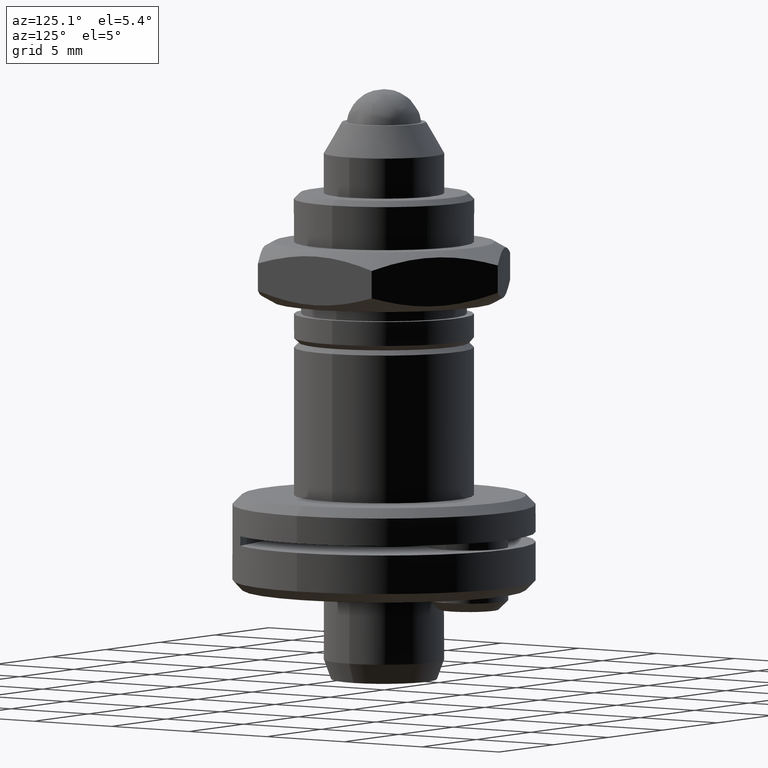
[diagram: clean part render]
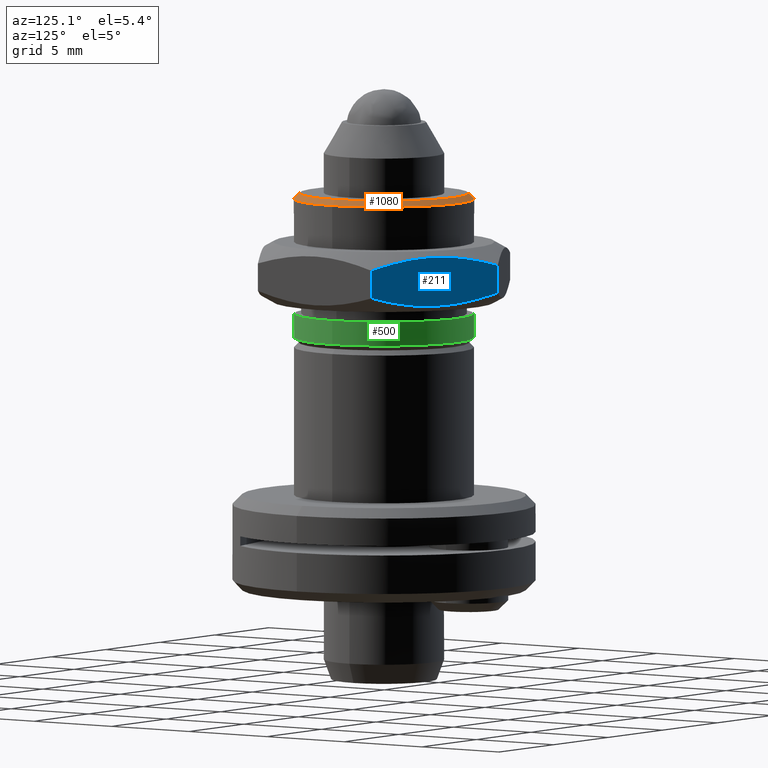
[diagram: same view with three faces highlighted in distinct colors, each labeled with its STEP entity id]
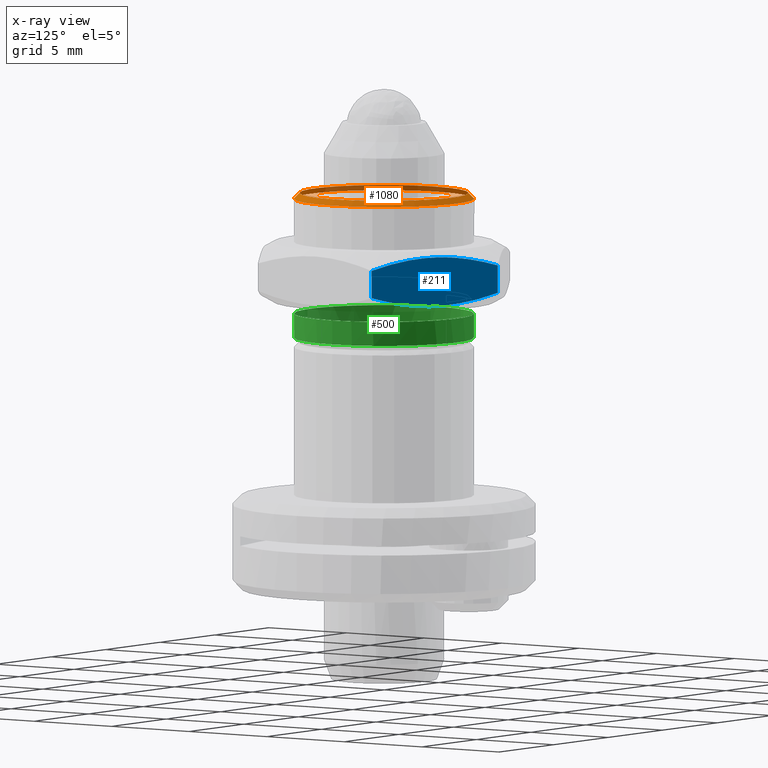
[diagram: x-ray of the same camera — body ghosted, the three highlighted faces saturated]
A machine part, auxiliary view with three faces highlighted in distinct colors.
The next image is the same camera in x-ray (body ghosted, the three faces saturated) — at least one of them is partly hidden behind the body in this view.
Their STEP definitions:

[orange] entity #1080 — the highlighted conical surface has half-angle 45 deg.
#262 = CARTESIAN_POINT ( 'NONE',  ( 4.762500000026648195, 0.000000000000000000, -5.797200000000004572 ) ) ;
#313 = CONICAL_SURFACE ( 'NONE', #1747, 4.462500000026639491, 0.7853981633974541632 ) ;
#497 = DIRECTION ( 'NONE',  ( 1.000000000000000000, 0.000000000000000000, 0.000000000000000000 ) ) ;
#704 = CARTESIAN_POINT ( 'NONE',  ( 0.000000000000000000, 0.000000000000000000, -5.797200000000004572 ) ) ;
#867 = VERTEX_POINT ( 'NONE', #2079 ) ;
#899 = DIRECTION ( 'NONE',  ( -1.000000000000000000, 0.000000000000000000, 0.000000000000000000 ) ) ;
#1059 = AXIS2_PLACEMENT_3D ( 'NONE', #1419, #1970, #1178 ) ;
#1080 = ADVANCED_FACE ( 'NONE', ( #2083, #1876 ), #313, .T. ) ;
#1169 = EDGE_LOOP ( 'NONE', ( #1963 ) ) ;
#1178 = DIRECTION ( 'NONE',  ( 1.000000000000000000, 0.000000000000000000, 0.000000000000000000 ) ) ;
#1419 = CARTESIAN_POINT ( 'NONE',  ( 0.000000000000000000, 0.000000000000000000, -5.497199999999999420 ) ) ;
#1639 = DIRECTION ( 'NONE',  ( 0.000000000000000000, 0.000000000000000000, -1.000000000000000000 ) ) ;
#1640 = CARTESIAN_POINT ( 'NONE',  ( 0.000000000000000000, 0.000000000000000000, -5.497199999999999420 ) ) ;
#1747 = AXIS2_PLACEMENT_3D ( 'NONE', #1640, #2276, #899 ) ;
#1757 = CIRCLE ( 'NONE', #1059, 4.462500000026639491 ) ;
#1826 = AXIS2_PLACEMENT_3D ( 'NONE', #704, #1639, #497 ) ;
#1876 = FACE_BOUND ( 'NONE', #1169, .T. ) ;
#1963 = ORIENTED_EDGE ( 'NONE', *, *, #1994, .F. ) ;
#1970 = DIRECTION ( 'NONE',  ( 0.000000000000000000, 0.000000000000000000, 1.000000000000000000 ) ) ;
#1994 = EDGE_CURVE ( 'NONE', #867, #867, #1757, .T. ) ;
#2024 = ORIENTED_EDGE ( 'NONE', *, *, #2328, .F. ) ;
#2052 = VERTEX_POINT ( 'NONE', #262 ) ;
#2079 = CARTESIAN_POINT ( 'NONE',  ( 4.462500000026639491, 0.000000000000000000, -5.497199999999999420 ) ) ;
#2081 = CIRCLE ( 'NONE', #1826, 4.762500000026648195 ) ;
#2083 = FACE_OUTER_BOUND ( 'NONE', #2422, .T. ) ;
#2276 = DIRECTION ( 'NONE',  ( 0.000000000000000000, 0.000000000000000000, -1.000000000000000000 ) ) ;
#2328 = EDGE_CURVE ( 'NONE', #2052, #2052, #2081, .T. ) ;
#2422 = EDGE_LOOP ( 'NONE', ( #2024 ) ) ;

[blue] entity #211 — the highlighted planar face has unit normal (-0.5, -0.866, 0).
#54 = CARTESIAN_POINT ( 'NONE',  ( 2.095898543574923778, 6.122280830381066075, -10.90427832816657627 ) ) ;
#79 = DIRECTION ( 'NONE',  ( 0.8660254037844289376, -0.5000000000000167644, 0.000000000000000000 ) ) ;
#151 = ORIENTED_EDGE ( 'NONE', *, *, #2192, .F. ) ;
#155 = CARTESIAN_POINT ( 'NONE',  ( 6.350000000000942002, 3.666174209354503777, -8.937653060721208576 ) ) ;
#211 = ADVANCED_FACE ( 'NONE', ( #1293 ), #479, .F. ) ;
#245 = VERTEX_POINT ( 'NONE', #451 ) ;
#267 = CARTESIAN_POINT ( 'NONE',  ( 0.5184175274064666272, 7.033039919707489318, -10.56455278415059951 ) ) ;
#288 = LINE ( 'NONE', #1660, #1404 ) ;
#362 = CARTESIAN_POINT ( 'NONE',  ( 3.720933469663062709, 5.184066478361493147, -8.370893383825873002 ) ) ;
#385 = CARTESIAN_POINT ( 'NONE',  ( 1.042466646458993118, 6.730480019753913190, -8.621855908812767311 ) ) ;
#451 = CARTESIAN_POINT ( 'NONE',  ( 6.350000000000942002, 3.666174209354503777, -8.937653060721208576 ) ) ;
#472 = CARTESIAN_POINT ( 'NONE',  ( 5.307533277096408320, 4.268042652443604368, -10.70754410959788494 ) ) ;
#479 = PLANE ( 'NONE',  #2341 ) ;
#505 = CARTESIAN_POINT ( 'NONE',  ( 6.349999999999999645, 3.666174209353959768, -8.077199999999999491 ) ) ;
#638 = ORIENTED_EDGE ( 'NONE', *, *, #880, .F. ) ;
#676 = CARTESIAN_POINT ( 'NONE',  ( 2.629066476214607651, 5.814456180948253561, -10.95850661229923340 ) ) ;
#689 = CARTESIAN_POINT ( 'NONE',  ( 6.349999999999999645, 3.666174242674693939, -10.39174692971212011 ) ) ;
#735 = B_SPLINE_CURVE_WITH_KNOTS ( 'NONE', 3,
 ( #1034, #267, #1817, #54, #676, #841, #1996, #2434, #1047, #472, #1258, #1021 ),
 .UNSPECIFIED., .F., .F.,
 ( 4, 2, 2, 2, 2, 4 ),
 ( 3.434922500509765702E-11, 0.001851315121222546836, 0.003702630208095868385, 0.004628287751532529810, 0.005553945294969192537, 0.007405260381842519724 ),
 .UNSPECIFIED. ) ;
#841 = CARTESIAN_POINT ( 'NONE',  ( 3.438862773081391655, 5.346920070963430582, -10.95910243954987529 ) ) ;
#880 = EDGE_CURVE ( 'NONE', #2487, #2289, #735, .T. ) ;
#940 = CARTESIAN_POINT ( 'NONE',  ( 5.309385398718746707, 4.266973329526373426, -8.622423978090150598 ) ) ;
#1021 = CARTESIAN_POINT ( 'NONE',  ( 6.349999999999999645, 3.666174242674693939, -10.39174692971212011 ) ) ;
#1034 = CARTESIAN_POINT ( 'NONE',  ( -2.885595593049908021E-08, 7.332348435368240658, -10.39174692971229064 ) ) ;
#1047 = CARTESIAN_POINT ( 'NONE',  ( 4.512969957013535094, 4.726783999181670914, -10.85576655939430957 ) ) ;
#1145 = CARTESIAN_POINT ( 'NONE',  ( 2.911137165393000270, 5.651602592620598386, -8.370297562367492006 ) ) ;
#1211 = DIRECTION ( 'NONE',  ( -0.000000000000000000, -0.000000000000000000, -1.000000000000000000 ) ) ;
#1258 = CARTESIAN_POINT ( 'NONE',  ( 5.830935958702113453, 3.965855973323964001, -10.56476828298862358 ) ) ;
#1283 = EDGE_CURVE ( 'NONE', #245, #2289, #288, .T. ) ;
#1293 = FACE_OUTER_BOUND ( 'NONE', #1893, .T. ) ;
#1368 = CARTESIAN_POINT ( 'NONE',  ( 0.5190639609765594908, 7.032666701111782714, -8.764631740393472370 ) ) ;
#1404 = VECTOR ( 'NONE', #1630, 1000.000000000000000 ) ;
#1477 = EDGE_CURVE ( 'NONE', #245, #2414, #1879, .T. ) ;
#1489 = CARTESIAN_POINT ( 'NONE',  ( 1.455313926847094691E-13, 7.332348418709172755, -8.937653060721164167 ) ) ;
#1534 = CARTESIAN_POINT ( 'NONE',  ( -2.885595593049908021E-08, 7.332348435368240658, -10.39174692971229064 ) ) ;
#1562 = CARTESIAN_POINT ( 'NONE',  ( 2.103465585201813148, 6.117911996860811996, -8.435248392561772945 ) ) ;
#1630 = DIRECTION ( 'NONE',  ( -0.000000000000000000, -0.000000000000000000, -1.000000000000000000 ) ) ;
#1660 = CARTESIAN_POINT ( 'NONE',  ( 6.349999999999999645, 3.666174209353959768, -8.077199999999999491 ) ) ;
#1666 = VECTOR ( 'NONE', #1211, 1000.000000000000000 ) ;
#1725 = CARTESIAN_POINT ( 'NONE',  ( 4.254101407321498662, 4.876241826031103344, -8.425121665177213615 ) ) ;
#1817 = CARTESIAN_POINT ( 'NONE',  ( 1.040614562266858112, 6.731549321060803948, -10.70697601216268779 ) ) ;
#1879 = B_SPLINE_CURVE_WITH_KNOTS ( 'NONE', 3,
 ( #155, #2332, #940, #1725, #362, #1145, #1929, #1562, #1948, #385, #1368, #2163 ),
 .UNSPECIFIED., .F., .F.,
 ( 4, 2, 2, 2, 2, 4 ),
 ( 1.613843466761046752E-15, 0.001851315103361937144, 0.003702630206722260127, 0.004628287758402422486, 0.005553945310082583978, 0.007405260413442906961 ),
 .UNSPECIFIED. ) ;
#1893 = EDGE_LOOP ( 'NONE', ( #2123, #2541, #638, #151 ) ) ;
#1929 = CARTESIAN_POINT ( 'NONE',  ( 2.639933959897847959, 5.808181836318321523, -8.383554203957617190 ) ) ;
#1948 = CARTESIAN_POINT ( 'NONE',  ( 1.837029972698696056, 6.271738669461197624, -8.473633451696272800 ) ) ;
#1978 = CARTESIAN_POINT ( 'NONE',  ( 1.405126015541213746E-13, 7.332348418708166449, -8.077199999999999491 ) ) ;
#1996 = CARTESIAN_POINT ( 'NONE',  ( 3.710065976304290025, 5.190340828577599375, -10.94584580014166697 ) ) ;
#2123 = ORIENTED_EDGE ( 'NONE', *, *, #1477, .F. ) ;
#2163 = CARTESIAN_POINT ( 'NONE',  ( 1.455313926847094691E-13, 7.332348418709172755, -8.937653060721164167 ) ) ;
#2192 = EDGE_CURVE ( 'NONE', #2414, #2487, #2385, .T. ) ;
#2225 = DIRECTION ( 'NONE',  ( -0.5000000000000167644, -0.8660254037844289376, 0.000000000000000000 ) ) ;
#2289 = VERTEX_POINT ( 'NONE', #689 ) ;
#2332 = CARTESIAN_POINT ( 'NONE',  ( 5.831582409655795551, 3.965482744691837258, -8.764847197270878354 ) ) ;
#2341 = AXIS2_PLACEMENT_3D ( 'NONE', #505, #2225, #79 ) ;
#2385 = LINE ( 'NONE', #1978, #1666 ) ;
#2414 = VERTEX_POINT ( 'NONE', #1489 ) ;
#2434 = CARTESIAN_POINT ( 'NONE',  ( 4.246534346621254841, 4.880610670563365616, -10.89415161611917071 ) ) ;
#2487 = VERTEX_POINT ( 'NONE', #1534 ) ;
#2541 = ORIENTED_EDGE ( 'NONE', *, *, #1283, .T. ) ;

[green] entity #500 — the highlighted cylindrical surface (bore or boss wall) has radius 4.7498 mm, axis along (0, 0, 1).
#340 = AXIS2_PLACEMENT_3D ( 'NONE', #2201, #2027, #1789 ) ;
#390 = CARTESIAN_POINT ( 'NONE',  ( 0.000000000000000000, 0.000000000000000000, 1.337328265961435836 ) ) ;
#492 = ORIENTED_EDGE ( 'NONE', *, *, #840, .F. ) ;
#500 = ADVANCED_FACE ( 'NONE', ( #1137, #1365 ), #1357, .T. ) ;
#781 = CARTESIAN_POINT ( 'NONE',  ( 4.749800000000000466, 0.000000000000000000, -11.88719999999999999 ) ) ;
#840 = EDGE_CURVE ( 'NONE', #1776, #1776, #1443, .T. ) ;
#855 = AXIS2_PLACEMENT_3D ( 'NONE', #947, #1217, #2154 ) ;
#947 = CARTESIAN_POINT ( 'NONE',  ( 0.000000000000000000, 0.000000000000000000, -11.88719999999999999 ) ) ;
#1137 = FACE_OUTER_BOUND ( 'NONE', #2254, .T. ) ;
#1217 = DIRECTION ( 'NONE',  ( -0.000000000000000000, -0.000000000000000000, -1.000000000000000000 ) ) ;
#1278 = ORIENTED_EDGE ( 'NONE', *, *, #1624, .T. ) ;
#1357 = CYLINDRICAL_SURFACE ( 'NONE', #1574, 4.749800000000000466 ) ;
#1365 = FACE_OUTER_BOUND ( 'NONE', #2016, .T. ) ;
#1443 = CIRCLE ( 'NONE', #340, 4.749799999956394458 ) ;
#1574 = AXIS2_PLACEMENT_3D ( 'NONE', #390, #2147, #2313 ) ;
#1595 = VERTEX_POINT ( 'NONE', #781 ) ;
#1624 = EDGE_CURVE ( 'NONE', #1595, #1595, #1997, .T. ) ;
#1776 = VERTEX_POINT ( 'NONE', #2412 ) ;
#1789 = DIRECTION ( 'NONE',  ( 0.000000000000000000, -1.000000000000000000, 0.000000000000000000 ) ) ;
#1997 = CIRCLE ( 'NONE', #855, 4.749800000000000466 ) ;
#2016 = EDGE_LOOP ( 'NONE', ( #492 ) ) ;
#2027 = DIRECTION ( 'NONE',  ( -0.000000000000000000, -0.000000000000000000, -1.000000000000000000 ) ) ;
#2147 = DIRECTION ( 'NONE',  ( 0.000000000000000000, 0.000000000000000000, 1.000000000000000000 ) ) ;
#2154 = DIRECTION ( 'NONE',  ( 1.000000000000000000, 0.000000000000000000, 0.000000000000000000 ) ) ;
#2201 = CARTESIAN_POINT ( 'NONE',  ( 0.000000000000000000, 0.000000000000000000, -13.15720000002329471 ) ) ;
#2254 = EDGE_LOOP ( 'NONE', ( #1278 ) ) ;
#2313 = DIRECTION ( 'NONE',  ( 1.000000000000000000, 0.000000000000000000, 0.000000000000000000 ) ) ;
#2412 = CARTESIAN_POINT ( 'NONE',  ( 0.000000000000000000, -4.749799999956394458, -13.15720000002329471 ) ) ;